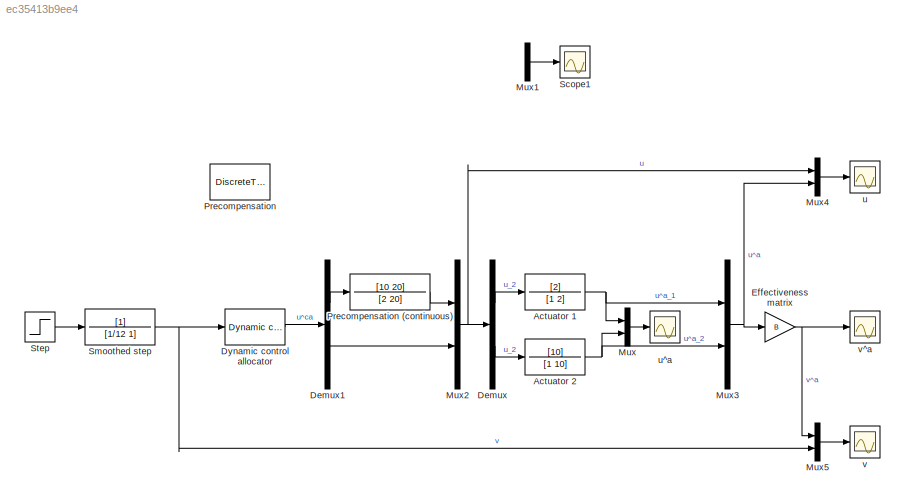
MODEL slx_ec35413b9ee4
KIND model
CONFIG AbsTol = auto
CONFIG EnableMultiTasking = off
CONFIG FixedStep = auto
CONFIG MaxStep = auto
CONFIG MinStep = auto
CONFIG RelTol = 1e-3
CONFIG SampleTimeConstraint = Unconstrained
CONFIG SolverName = VariableStepAuto
CONFIG StartTime = 0.0
CONFIG StopTime = 4
BLOCK [TransferFcn] Actuator 1
  Denominator = [1 2]
  Numerator = [2]
BLOCK [TransferFcn] Actuator 2
  Denominator = [1 10]
  Numerator = [10]
BLOCK [Demux] Demux
  Outputs = 2
  Ports = [1, 2]
BLOCK [Demux] Demux1
  Outputs = 2
  Ports = [1, 2]
BLOCK [Reference] Dynamic control allocator  REF=qcatlib/Dynamic control allocator  (lib defined in mdl_185632192637, slx_3440b88f227d, +1 more)
  Ports = [1, 1]
  SourceBlock = qcatlib/Dynamic control allocator
  SourceType = Dynamic control allocator
BLOCK [Gain] Effectiveness matrix
  Gain = B
  Multiplication = Matrix(K*u)
BLOCK [Mux] Mux
  DisplayOption = bar
  Inputs = 2
  Ports = [2, 1]
BLOCK [Mux] Mux1
  DisplayOption = bar
  Inputs = 2
  Ports = [2, 1]
BLOCK [Mux] Mux2
  DisplayOption = bar
  Inputs = 2
  Ports = [2, 1]
BLOCK [Mux] Mux3
  DisplayOption = bar
  Inputs = 2
  Ports = [2, 1]
BLOCK [Mux] Mux4
  DisplayOption = bar
  Inputs = 2
  Ports = [2, 1]
BLOCK [Mux] Mux5
  DisplayOption = bar
  Inputs = 2
  Ports = [2, 1]
BLOCK [DiscreteTransferFcn] Precompensation
  Denominator = tfpred.Denominator{1}
  InputPortMap = u0
  Numerator = tfpred.Numerator{1}
  Ports = [1, 1]
  SampleTime = 0.02
BLOCK [TransferFcn] Precompensation (continuous)
  Denominator = [2 20]
  Numerator = [10 20]
BLOCK [Scope] Scope1
  Floating = off
  NumInputPorts = 1
  Ports = [1]
  ScopeSpecificationString = Simulink.scopes.TimeScopeBlockCfg('CurrentConfiguration', extmgr.ConfigurationSet(extmgr.Configuration('Core','General UI',true),extmgr.Configuration('Core','Source UI',true),extmgr.Configuration('Sources','WiredSimulink',true,'DataLoggingVariableName','ScopeData1'),extmgr.Configuration('Visuals','Time Domain',true,'SerializedDisplays',{struct('MinYLimReal','-1.00000','MaxYLimReal','1.00000','YLab...<+1405ch>
BLOCK [TransferFcn] Smoothed step
  Denominator = [1/12 1]
BLOCK [Step] Step
  After = 3
  SampleTime = 0
  Time = 0.5
BLOCK [Scope] u
  Floating = off
  NumInputPorts = 1
  Ports = [1]
  ScopeSpecificationString = Simulink.scopes.TimeScopeBlockCfg('CurrentConfiguration', extmgr.ConfigurationSet(extmgr.Configuration('Core','General UI',true),extmgr.Configuration('Core','Source UI',true),extmgr.Configuration('Sources','WiredSimulink',true,'DataLoggingVariableName','ScopeData1'),extmgr.Configuration('Visuals','Time Domain',true,'SerializedDisplays',{struct('MinYLimReal','-0.25','MaxYLimReal','2.25','YLabelReal...<+1944ch>
BLOCK [Scope] u^a
  Floating = off
  NumInputPorts = 1
  Ports = [1]
  ScopeSpecificationString = Simulink.scopes.TimeScopeBlockCfg('CurrentConfiguration', extmgr.ConfigurationSet(extmgr.Configuration('Core','General UI',true),extmgr.Configuration('Core','Source UI',true),extmgr.Configuration('Sources','WiredSimulink',true),extmgr.Configuration('Visuals','Time Domain',true,'SerializedDisplays',{struct('MinYLimReal','-1.26514','MaxYLimReal','1.26514','YLabelReal','','MinYLimMag','0.00000','MaxY...<+1333ch>
BLOCK [Scope] v
  Floating = off
  NumInputPorts = 1
  Ports = [1]
  ScopeSpecificationString = Simulink.scopes.TimeScopeBlockCfg('CurrentConfiguration', extmgr.ConfigurationSet(extmgr.Configuration('Core','General UI',true),extmgr.Configuration('Core','Source UI',true),extmgr.Configuration('Sources','WiredSimulink',true,'DataLoggingVariableName','ScopeData2'),extmgr.Configuration('Visuals','Time Domain',true,'SerializedDisplays',{struct('MinYLimReal','-0.375','MaxYLimReal','3.375','YLabelRe...<+1379ch>
BLOCK [Scope] v^a
  Floating = off
  NumInputPorts = 1
  Ports = [1]
  ScopeSpecificationString = Simulink.scopes.TimeScopeBlockCfg('CurrentConfiguration', extmgr.ConfigurationSet(extmgr.Configuration('Core','General UI',true),extmgr.Configuration('Core','Source UI',true),extmgr.Configuration('Sources','WiredSimulink',true,'DataLoggingVariableName','ScopeData2'),extmgr.Configuration('Visuals','Time Domain',true,'SerializedDisplays',{struct('MinYLimReal','-0.375','MaxYLimReal','3.375','YLabelRe...<+1350ch>
NET Actuator 1:1 -> Mux3:1, Mux:1
NET Actuator 2:1 -> Mux3:2, Mux:2
LINE Demux1:1 -> Precompensation (continuous):1
LINE Demux1:2 -> Mux2:2
LINE Demux:1 -> Actuator 1:1
LINE Demux:2 -> Actuator 2:1
LINE Dynamic control allocator:1 -> Demux1:1
NET Effectiveness matrix:1 -> Mux5:1, v^a:1
LINE Mux1:1 -> Scope1:1
NET Mux2:1 -> Demux:1, Mux4:1
NET Mux3:1 -> Effectiveness matrix:1, Mux4:2
LINE Mux4:1 -> u:1
LINE Mux5:1 -> v:1
LINE Mux:1 -> u^a:1
LINE Precompensation (continuous):1 -> Mux2:1
NET Smoothed step:1 -> Dynamic control allocator:1, Mux5:2
LINE Step:1 -> Smoothed step:1
note: NET lines group one-source signal fan-out (src -> all destinations, sorted); 1:1 wires keep LINE
